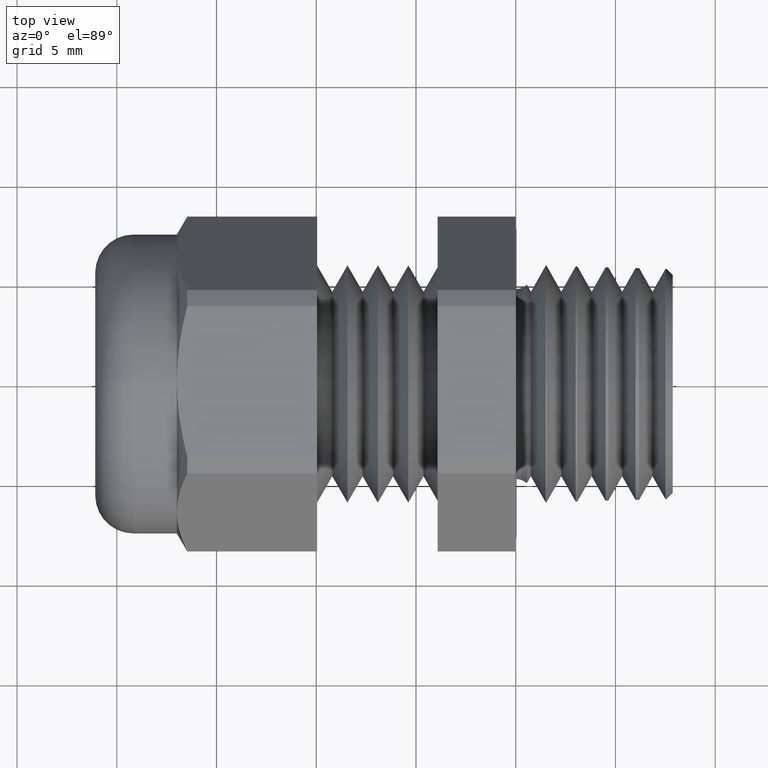
[diagram: clean part render]
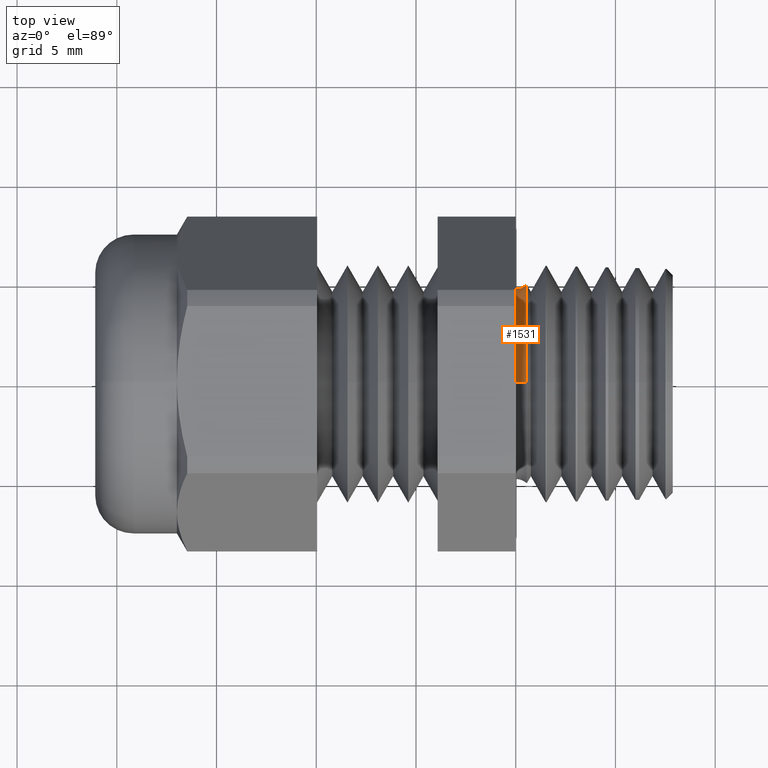
[diagram: same view with one face highlighted and labeled with its STEP entity id]
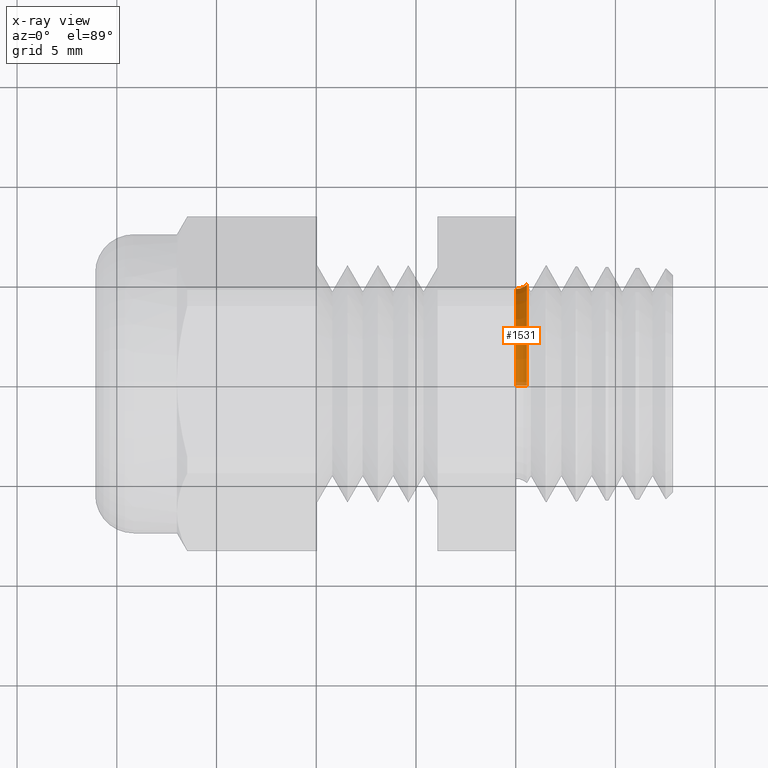
[diagram: x-ray of the same camera — body ghosted, the highlighted face saturated]
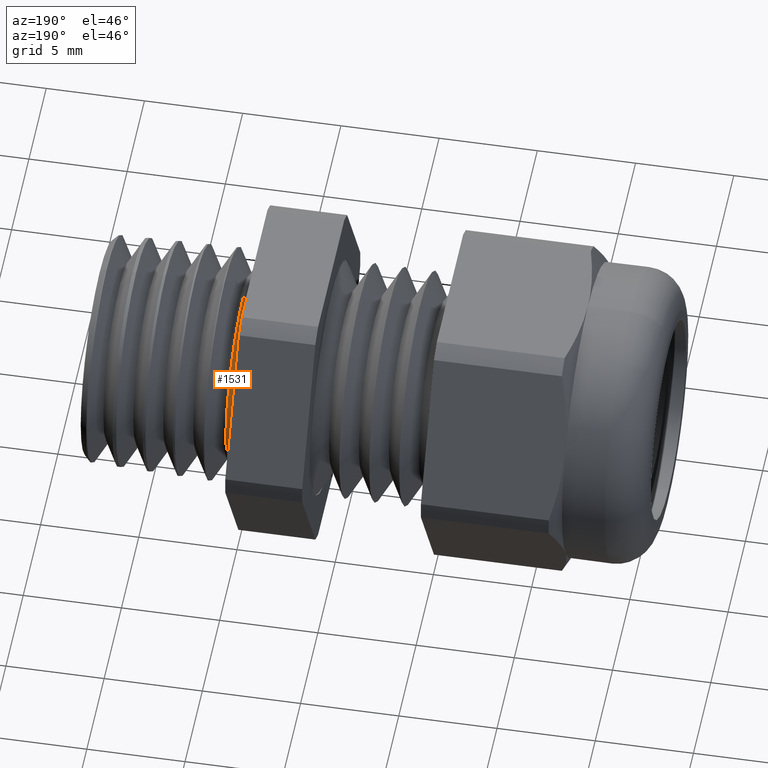
[diagram: same view with one face highlighted and labeled with its STEP entity id]
A machine part, top view. The second image highlights one B-rep face of the part: STEP entity #1531.
The next image is the same camera in x-ray: the body ghosted, the highlighted face saturated — about 4% of this face is hidden behind the body in this view.
A second angle (auxiliary view) of the same face is appended — the face is thin or edge-on in the first view.
In plain terms, the highlighted toroidal blend (fillet) surface has major radius 5.6097 mm and minor (blend) radius 0.8255 mm.
Its self-contained STEP definition (entity closure, byte-faithful):
#170 = CARTESIAN_POINT ( 'NONE',  ( 3.980102097228894500E-018, 2.306674661077043700E-017, -0.1883542800000000700 ) ) ;
#171 = DIRECTION ( 'NONE',  ( 0.0000000000000000000, 0.0000000000000000000, 1.000000000000000000 ) ) ;
#172 = DIRECTION ( 'NONE',  ( -1.000000000000000000, 0.0000000000000000000, 0.0000000000000000000 ) ) ;
#173 = CARTESIAN_POINT ( 'NONE',  ( 3.980102097228893700E-018, 0.0000000000000000000, 0.0000000000000000000 ) ) ;
#174 = AXIS2_PLACEMENT_3D ( 'NONE', #173, #172, #171 ) ;
#175 = CIRCLE ( 'NONE', #174, 0.1883542800000000700 ) ;
#180 = CARTESIAN_POINT ( 'NONE',  ( 3.980102097228894500E-018, 0.0000000000000000000, 0.1883542800000000700 ) ) ;
#358 = CARTESIAN_POINT ( 'NONE',  ( 0.02198579858692102700, 2.411568106298652200E-017, -0.1969194798024769500 ) ) ;
#359 = DIRECTION ( 'NONE',  ( 0.0000000000000000000, -1.224646799147353700E-016, 1.000000000000000000 ) ) ;
#360 = DIRECTION ( 'NONE',  ( 0.0000000000000000000, 1.000000000000000000, 1.224646799147353200E-016 ) ) ;
#361 = CARTESIAN_POINT ( 'NONE',  ( 0.0000000000000000000, 2.704684870799933300E-017, -0.2208542800000000100 ) ) ;
#362 = AXIS2_PLACEMENT_3D ( 'NONE', #361, #360, #359 ) ;
#363 = CIRCLE ( 'NONE', #362, 0.03249999999999995900 ) ;
#415 = DIRECTION ( 'NONE',  ( 0.0000000000000000000, 0.0000000000000000000, -1.000000000000000000 ) ) ;
#416 = DIRECTION ( 'NONE',  ( 0.0000000000000000000, -1.000000000000000000, 0.0000000000000000000 ) ) ;
#417 = CARTESIAN_POINT ( 'NONE',  ( 0.0000000000000000000, 0.0000000000000000000, 0.2208542800000000100 ) ) ;
#418 = AXIS2_PLACEMENT_3D ( 'NONE', #417, #416, #415 ) ;
#419 = CIRCLE ( 'NONE', #418, 0.03249999999999995900 ) ;
#420 = CARTESIAN_POINT ( 'NONE',  ( 0.02198579858692102700, 0.0000000000000000000, 0.1969194798024769500 ) ) ;
#1518 = ORIENTED_EDGE ( 'NONE', *, *, #1799, .F. ) ;
#1530 = EDGE_LOOP ( 'NONE', ( #1518, #1535, #1536, #1551 ) ) ;
#1531 = ADVANCED_FACE ( 'NONE', ( #2911 ), #2909, .F. ) ;
#1535 = ORIENTED_EDGE ( 'NONE', *, *, #1940, .T. ) ;
#1536 = ORIENTED_EDGE ( 'NONE', *, *, #2105, .T. ) ;
#1551 = ORIENTED_EDGE ( 'NONE', *, *, #1903, .F. ) ;
#1796 = VERTEX_POINT ( 'NONE', #180 ) ;
#1799 = EDGE_CURVE ( 'NONE', #1796, #1800, #175, .T. ) ;
#1800 = VERTEX_POINT ( 'NONE', #170 ) ;
#1903 = EDGE_CURVE ( 'NONE', #1800, #1904, #363, .T. ) ;
#1904 = VERTEX_POINT ( 'NONE', #358 ) ;
#1938 = VERTEX_POINT ( 'NONE', #420 ) ;
#1940 = EDGE_CURVE ( 'NONE', #1796, #1938, #419, .T. ) ;
#2105 = EDGE_CURVE ( 'NONE', #1938, #1904, #2487, .T. ) ;
#2483 = DIRECTION ( 'NONE',  ( 0.0000000000000000000, 0.0000000000000000000, 1.000000000000000000 ) ) ;
#2484 = DIRECTION ( 'NONE',  ( -1.000000000000000000, 0.0000000000000000000, 0.0000000000000000000 ) ) ;
#2485 = CARTESIAN_POINT ( 'NONE',  ( 0.02198579858692102700, 0.0000000000000000000, 0.0000000000000000000 ) ) ;
#2486 = AXIS2_PLACEMENT_3D ( 'NONE', #2485, #2484, #2483 ) ;
#2487 = CIRCLE ( 'NONE', #2486, 0.1969194798024769500 ) ;
#2906 = DIRECTION ( 'NONE',  ( 0.0000000000000000000, 0.0000000000000000000, 1.000000000000000000 ) ) ;
#2907 = DIRECTION ( 'NONE',  ( -1.000000000000000000, 0.0000000000000000000, 0.0000000000000000000 ) ) ;
#2908 = AXIS2_PLACEMENT_3D ( 'NONE', #2910, #2907, #2906 ) ;
#2909 = TOROIDAL_SURFACE ( 'NONE', #2908, 0.2208542800000000100, 0.03249999999999996600 ) ;
#2910 = CARTESIAN_POINT ( 'NONE',  ( 0.0000000000000000000, 0.0000000000000000000, 0.0000000000000000000 ) ) ;
#2911 = FACE_OUTER_BOUND ( 'NONE', #1530, .T. ) ;